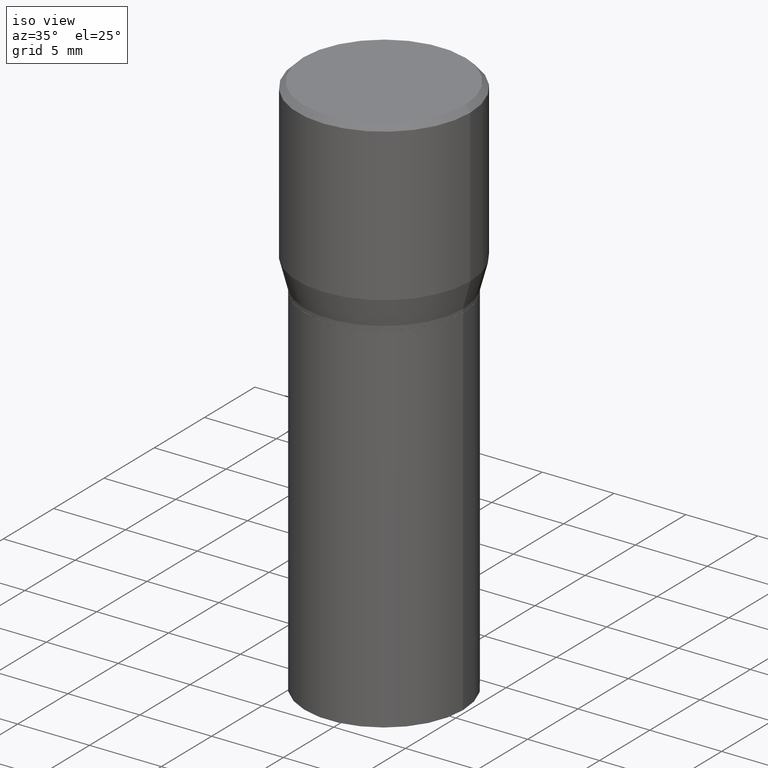
[diagram: clean part render]
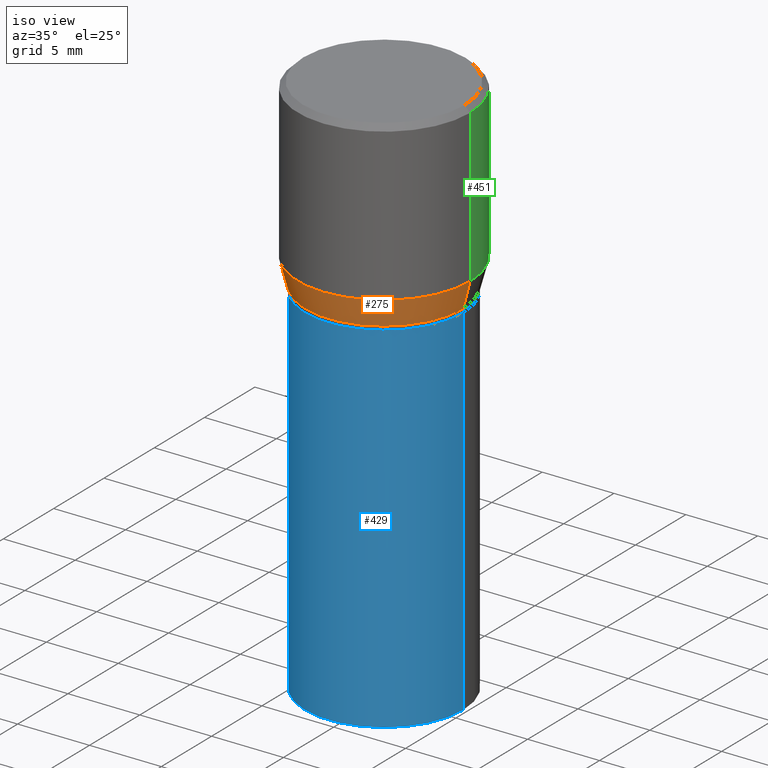
[diagram: same view with three faces highlighted in distinct colors, each labeled with its STEP entity id]
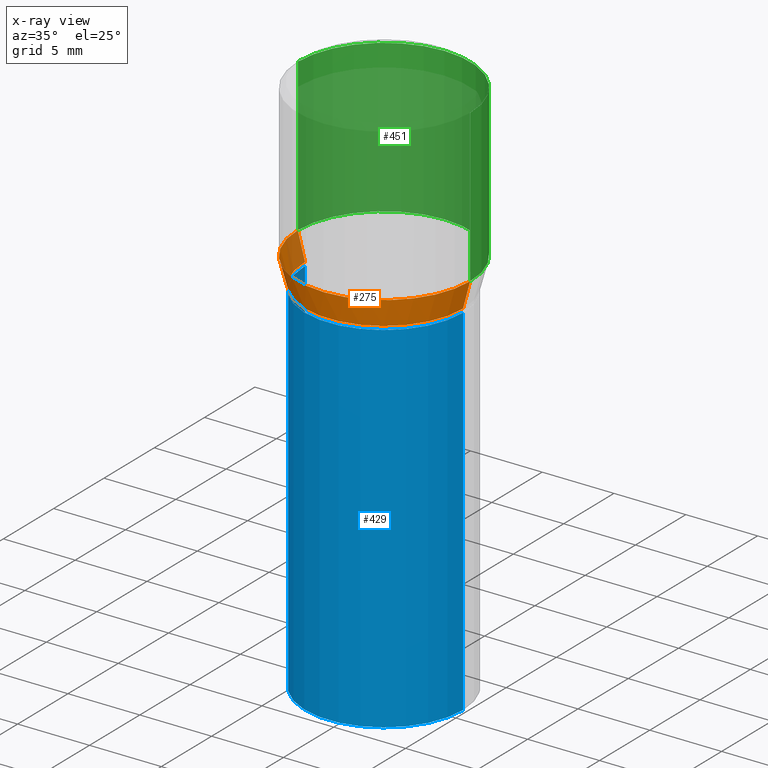
[diagram: x-ray of the same camera — body ghosted, the three highlighted faces saturated]
A machine part, iso view with three faces highlighted in distinct colors.
The next image is the same camera in x-ray (body ghosted, the three faces saturated) — at least one of them is partly hidden behind the body in this view.
Their STEP definitions:

[orange] entity #275 — the highlighted conical surface has half-angle 15 deg.
#2 = CARTESIAN_POINT ( 'NONE',  ( 1.236673575287824021E-29, -1.765642113052979313E-15, -0.5057000000000001494 ) ) ;
#15 = DIRECTION ( 'NONE',  ( 1.000000000000000000, -6.982962677686268288E-15, 0.000000000000000000 ) ) ;
#29 = ORIENTED_EDGE ( 'NONE', *, *, #118, .T. ) ;
#45 = LINE ( 'NONE', #168, #415 ) ;
#54 = VERTEX_POINT ( 'NONE', #231 ) ;
#57 = CARTESIAN_POINT ( 'NONE',  ( 1.057335613469222325E-29, -1.509595033060739709E-15, -0.4323652016312719004 ) ) ;
#75 = CARTESIAN_POINT ( 'NONE',  ( 0.2361999999999999933, -3.158970817530236235E-15, -0.4323652016312719004 ) ) ;
#108 = CARTESIAN_POINT ( 'NONE',  ( 1.236673575287824021E-29, -1.765642113052979313E-15, -0.5057000000000001494 ) ) ;
#111 = VECTOR ( 'NONE', #382, 39.37007874015748854 ) ;
#118 = EDGE_CURVE ( 'NONE', #230, #176, #349, .T. ) ;
#126 = ORIENTED_EDGE ( 'NONE', *, *, #252, .F. ) ;
#127 = AXIS2_PLACEMENT_3D ( 'NONE', #57, #215, #15 ) ;
#139 = FACE_OUTER_BOUND ( 'NONE', #383, .T. ) ;
#147 = CONICAL_SURFACE ( 'NONE', #237, 0.2165500000000000480, 0.2617993877991494078 ) ;
#161 = DIRECTION ( 'NONE',  ( 1.000000000000000000, -6.982962677686266711E-15, 0.000000000000000000 ) ) ;
#168 = CARTESIAN_POINT ( 'NONE',  ( -0.2165500000000000480, -2.269618187644819696E-16, -0.5057000000000001494 ) ) ;
#175 = CARTESIAN_POINT ( 'NONE',  ( -0.2361999999999999933, 1.687069088046168326E-16, -0.4323652016312719004 ) ) ;
#176 = VERTEX_POINT ( 'NONE', #75 ) ;
#193 = ORIENTED_EDGE ( 'NONE', *, *, #224, .T. ) ;
#202 = CARTESIAN_POINT ( 'NONE',  ( 0.2165500000000000480, -3.277802680905940530E-15, -0.5057000000000001494 ) ) ;
#204 = CIRCLE ( 'NONE', #127, 0.2361999999999999933 ) ;
#215 = DIRECTION ( 'NONE',  ( -2.445468806185136597E-29, 3.491481338843145583E-15, 1.000000000000000000 ) ) ;
#224 = EDGE_CURVE ( 'NONE', #54, #230, #437, .T. ) ;
#230 = VERTEX_POINT ( 'NONE', #202 ) ;
#231 = CARTESIAN_POINT ( 'NONE',  ( -0.2165500000000000480, -2.912745497993258696E-17, -0.5057000000000001494 ) ) ;
#237 = AXIS2_PLACEMENT_3D ( 'NONE', #108, #320, #461 ) ;
#242 = VERTEX_POINT ( 'NONE', #175 ) ;
#252 = EDGE_CURVE ( 'NONE', #54, #242, #45, .T. ) ;
#275 = ADVANCED_FACE ( 'NONE', ( #139 ), #147, .T. ) ;
#305 = CARTESIAN_POINT ( 'NONE',  ( 0.2165500000000000480, -3.277802680905940530E-15, -0.5057000000000001494 ) ) ;
#308 = EDGE_CURVE ( 'NONE', #242, #176, #204, .T. ) ;
#316 = DIRECTION ( 'NONE',  ( -0.2588190451025206840, 5.211531920934545520E-15, 0.9659258262890682012 ) ) ;
#320 = DIRECTION ( 'NONE',  ( -2.445468806185136597E-29, 3.491481338843145583E-15, 1.000000000000000000 ) ) ;
#347 = ORIENTED_EDGE ( 'NONE', *, *, #308, .F. ) ;
#349 = LINE ( 'NONE', #305, #111 ) ;
#355 = DIRECTION ( 'NONE',  ( -2.445468806185136597E-29, 3.491481338843145583E-15, 1.000000000000000000 ) ) ;
#382 = DIRECTION ( 'NONE',  ( 0.2588190451025206840, 1.565188264969626504E-15, 0.9659258262890682012 ) ) ;
#383 = EDGE_LOOP ( 'NONE', ( #126, #193, #29, #347 ) ) ;
#415 = VECTOR ( 'NONE', #316, 39.37007874015748854 ) ;
#421 = AXIS2_PLACEMENT_3D ( 'NONE', #2, #355, #161 ) ;
#437 = CIRCLE ( 'NONE', #421, 0.2165500000000000480 ) ;
#461 = DIRECTION ( 'NONE',  ( 1.000000000000000000, -6.982962677686266711E-15, 0.000000000000000000 ) ) ;

[blue] entity #429 — the highlighted cylindrical surface (partial cylindrical patch) has radius 5.5004 mm, axis along (-0, 0, 1).
#40 = DIRECTION ( 'NONE',  ( -2.445468806185136597E-29, 3.491481338843145583E-15, 1.000000000000000000 ) ) ;
#44 = CARTESIAN_POINT ( 'NONE',  ( -0.2165500000000000203, -1.980209173064567670E-15, -1.500000000000000222 ) ) ;
#53 = LINE ( 'NONE', #443, #122 ) ;
#69 = ORIENTED_EDGE ( 'NONE', *, *, #301, .T. ) ;
#72 = CARTESIAN_POINT ( 'NONE',  ( 0.2165500000000000203, -3.312717494294371784E-15, -0.5157000000000001583 ) ) ;
#80 = DIRECTION ( 'NONE',  ( -2.445468806185136597E-29, 3.491481338843145583E-15, 1.000000000000000000 ) ) ;
#83 = ORIENTED_EDGE ( 'NONE', *, *, #203, .F. ) ;
#96 = LINE ( 'NONE', #104, #196 ) ;
#97 = FACE_OUTER_BOUND ( 'NONE', #169, .T. ) ;
#104 = CARTESIAN_POINT ( 'NONE',  ( -0.2165500000000000203, 1.538680294288497096E-15, -1.065195393794699923E-29 ) ) ;
#121 = DIRECTION ( 'NONE',  ( 1.000000000000000000, -6.982962677686264344E-15, 0.000000000000000000 ) ) ;
#122 = VECTOR ( 'NONE', #447, 39.37007874015748143 ) ;
#132 = CIRCLE ( 'NONE', #220, 0.2165500000000000203 ) ;
#138 = EDGE_CURVE ( 'NONE', #428, #358, #96, .T. ) ;
#169 = EDGE_LOOP ( 'NONE', ( #281, #276, #69, #83 ) ) ;
#195 = CARTESIAN_POINT ( 'NONE',  ( 1.261128263349675426E-29, -1.800556926441410962E-15, -0.5157000000000001583 ) ) ;
#196 = VECTOR ( 'NONE', #232, 39.37007874015748143 ) ;
#203 = EDGE_CURVE ( 'NONE', #358, #436, #132, .T. ) ;
#220 = AXIS2_PLACEMENT_3D ( 'NONE', #195, #80, #396 ) ;
#232 = DIRECTION ( 'NONE',  ( -2.445468806185136877E-29, 3.491481338843145188E-15, 1.000000000000000000 ) ) ;
#276 = ORIENTED_EDGE ( 'NONE', *, *, #326, .T. ) ;
#281 = ORIENTED_EDGE ( 'NONE', *, *, #138, .F. ) ;
#301 = EDGE_CURVE ( 'NONE', #448, #436, #53, .T. ) ;
#303 = CIRCLE ( 'NONE', #407, 0.2165500000000000203 ) ;
#324 = CARTESIAN_POINT ( 'NONE',  ( 0.2165500000000000203, -6.749382576117678999E-15, -1.500000000000000222 ) ) ;
#326 = EDGE_CURVE ( 'NONE', #428, #448, #303, .T. ) ;
#345 = DIRECTION ( 'NONE',  ( -2.445468806185136597E-29, 3.491481338843145583E-15, 1.000000000000000000 ) ) ;
#358 = VERTEX_POINT ( 'NONE', #370 ) ;
#360 = CARTESIAN_POINT ( 'NONE',  ( 0.000000000000000000, 0.000000000000000000, 0.000000000000000000 ) ) ;
#363 = DIRECTION ( 'NONE',  ( 1.000000000000000000, -6.982962677686266711E-15, 4.876176775795935793E-29 ) ) ;
#370 = CARTESIAN_POINT ( 'NONE',  ( -0.2165500000000000203, -1.980209173064567670E-15, -0.5157000000000001583 ) ) ;
#396 = DIRECTION ( 'NONE',  ( 1.000000000000000000, -6.982962677686265133E-15, 0.000000000000000000 ) ) ;
#407 = AXIS2_PLACEMENT_3D ( 'NONE', #414, #345, #121 ) ;
#414 = CARTESIAN_POINT ( 'NONE',  ( 3.668203209277704895E-29, -5.237222008264718177E-15, -1.500000000000000222 ) ) ;
#422 = AXIS2_PLACEMENT_3D ( 'NONE', #360, #40, #363 ) ;
#427 = CYLINDRICAL_SURFACE ( 'NONE', #422, 0.2165500000000000203 ) ;
#428 = VERTEX_POINT ( 'NONE', #44 ) ;
#429 = ADVANCED_FACE ( 'NONE', ( #97 ), #427, .T. ) ;
#436 = VERTEX_POINT ( 'NONE', #72 ) ;
#443 = CARTESIAN_POINT ( 'NONE',  ( 0.2165500000000000203, -1.512160567852961217E-15, 1.055936080798610036E-29 ) ) ;
#447 = DIRECTION ( 'NONE',  ( -2.445468806185136877E-29, 3.491481338843145188E-15, 1.000000000000000000 ) ) ;
#448 = VERTEX_POINT ( 'NONE', #324 ) ;

[green] entity #451 — the highlighted cylindrical surface (partial cylindrical patch) has radius 5.9995 mm, axis along (-0, 0, 1).
#11 = CARTESIAN_POINT ( 'NONE',  ( -0.2361999999999999933, 1.678301941865356591E-15, -1.161852468318208757E-29 ) ) ;
#12 = CIRCLE ( 'NONE', #280, 0.2361999999999999933 ) ;
#18 = CARTESIAN_POINT ( 'NONE',  ( 0.000000000000000000, 0.000000000000000000, 0.000000000000000000 ) ) ;
#22 = LINE ( 'NONE', #124, #61 ) ;
#50 = AXIS2_PLACEMENT_3D ( 'NONE', #18, #154, #441 ) ;
#56 = EDGE_CURVE ( 'NONE', #176, #242, #286, .T. ) ;
#61 = VECTOR ( 'NONE', #423, 39.37007874015748143 ) ;
#73 = ORIENTED_EDGE ( 'NONE', *, *, #425, .F. ) ;
#75 = CARTESIAN_POINT ( 'NONE',  ( 0.2361999999999999933, -3.158970817530236235E-15, -0.4323652016312719004 ) ) ;
#98 = DIRECTION ( 'NONE',  ( -2.445468806185136597E-29, 3.491481338843145583E-15, 1.000000000000000000 ) ) ;
#105 = DIRECTION ( 'NONE',  ( -2.445468806185136597E-29, 3.491481338843145583E-15, 1.000000000000000000 ) ) ;
#112 = VECTOR ( 'NONE', #378, 39.37007874015748143 ) ;
#124 = CARTESIAN_POINT ( 'NONE',  ( 0.2361999999999999933, -1.649375784469496131E-15, 1.151752954443000088E-29 ) ) ;
#154 = DIRECTION ( 'NONE',  ( -2.445468806185136597E-29, 3.491481338843145583E-15, 1.000000000000000000 ) ) ;
#174 = EDGE_LOOP ( 'NONE', ( #332, #417, #73, #184 ) ) ;
#175 = CARTESIAN_POINT ( 'NONE',  ( -0.2361999999999999933, 1.687069088046168326E-16, -0.4323652016312719004 ) ) ;
#176 = VERTEX_POINT ( 'NONE', #75 ) ;
#184 = ORIENTED_EDGE ( 'NONE', *, *, #390, .F. ) ;
#201 = CARTESIAN_POINT ( 'NONE',  ( 0.2361999999999999933, -1.701748004552143407E-15, -0.01499999999999999944 ) ) ;
#235 = DIRECTION ( 'NONE',  ( 1.000000000000000000, -6.982962677686268288E-15, 0.000000000000000000 ) ) ;
#242 = VERTEX_POINT ( 'NONE', #175 ) ;
#280 = AXIS2_PLACEMENT_3D ( 'NONE', #434, #105, #367 ) ;
#286 = CIRCLE ( 'NONE', #350, 0.2361999999999999933 ) ;
#317 = VERTEX_POINT ( 'NONE', #413 ) ;
#328 = LINE ( 'NONE', #11, #112 ) ;
#332 = ORIENTED_EDGE ( 'NONE', *, *, #56, .T. ) ;
#350 = AXIS2_PLACEMENT_3D ( 'NONE', #459, #98, #235 ) ;
#367 = DIRECTION ( 'NONE',  ( 1.000000000000000000, -6.982962677686266711E-15, 0.000000000000000000 ) ) ;
#374 = EDGE_CURVE ( 'NONE', #242, #317, #328, .T. ) ;
#378 = DIRECTION ( 'NONE',  ( -2.445468806185136877E-29, 3.491481338843145188E-15, 1.000000000000000000 ) ) ;
#390 = EDGE_CURVE ( 'NONE', #176, #426, #22, .T. ) ;
#406 = CYLINDRICAL_SURFACE ( 'NONE', #50, 0.2361999999999999933 ) ;
#413 = CARTESIAN_POINT ( 'NONE',  ( -0.2361999999999999933, 8.973183152936629998E-16, -0.01499999999999999944 ) ) ;
#417 = ORIENTED_EDGE ( 'NONE', *, *, #374, .T. ) ;
#423 = DIRECTION ( 'NONE',  ( -2.445468806185136877E-29, 3.491481338843145188E-15, 1.000000000000000000 ) ) ;
#425 = EDGE_CURVE ( 'NONE', #426, #317, #12, .T. ) ;
#426 = VERTEX_POINT ( 'NONE', #201 ) ;
#434 = CARTESIAN_POINT ( 'NONE',  ( 3.668203209277705088E-31, -5.237222008264718399E-17, -0.01499999999999999944 ) ) ;
#439 = FACE_OUTER_BOUND ( 'NONE', #174, .T. ) ;
#441 = DIRECTION ( 'NONE',  ( 1.000000000000000000, -6.982962677686266711E-15, 4.876176775795936353E-29 ) ) ;
#451 = ADVANCED_FACE ( 'NONE', ( #439 ), #406, .T. ) ;
#459 = CARTESIAN_POINT ( 'NONE',  ( 1.057335613469222325E-29, -1.509595033060739709E-15, -0.4323652016312719004 ) ) ;